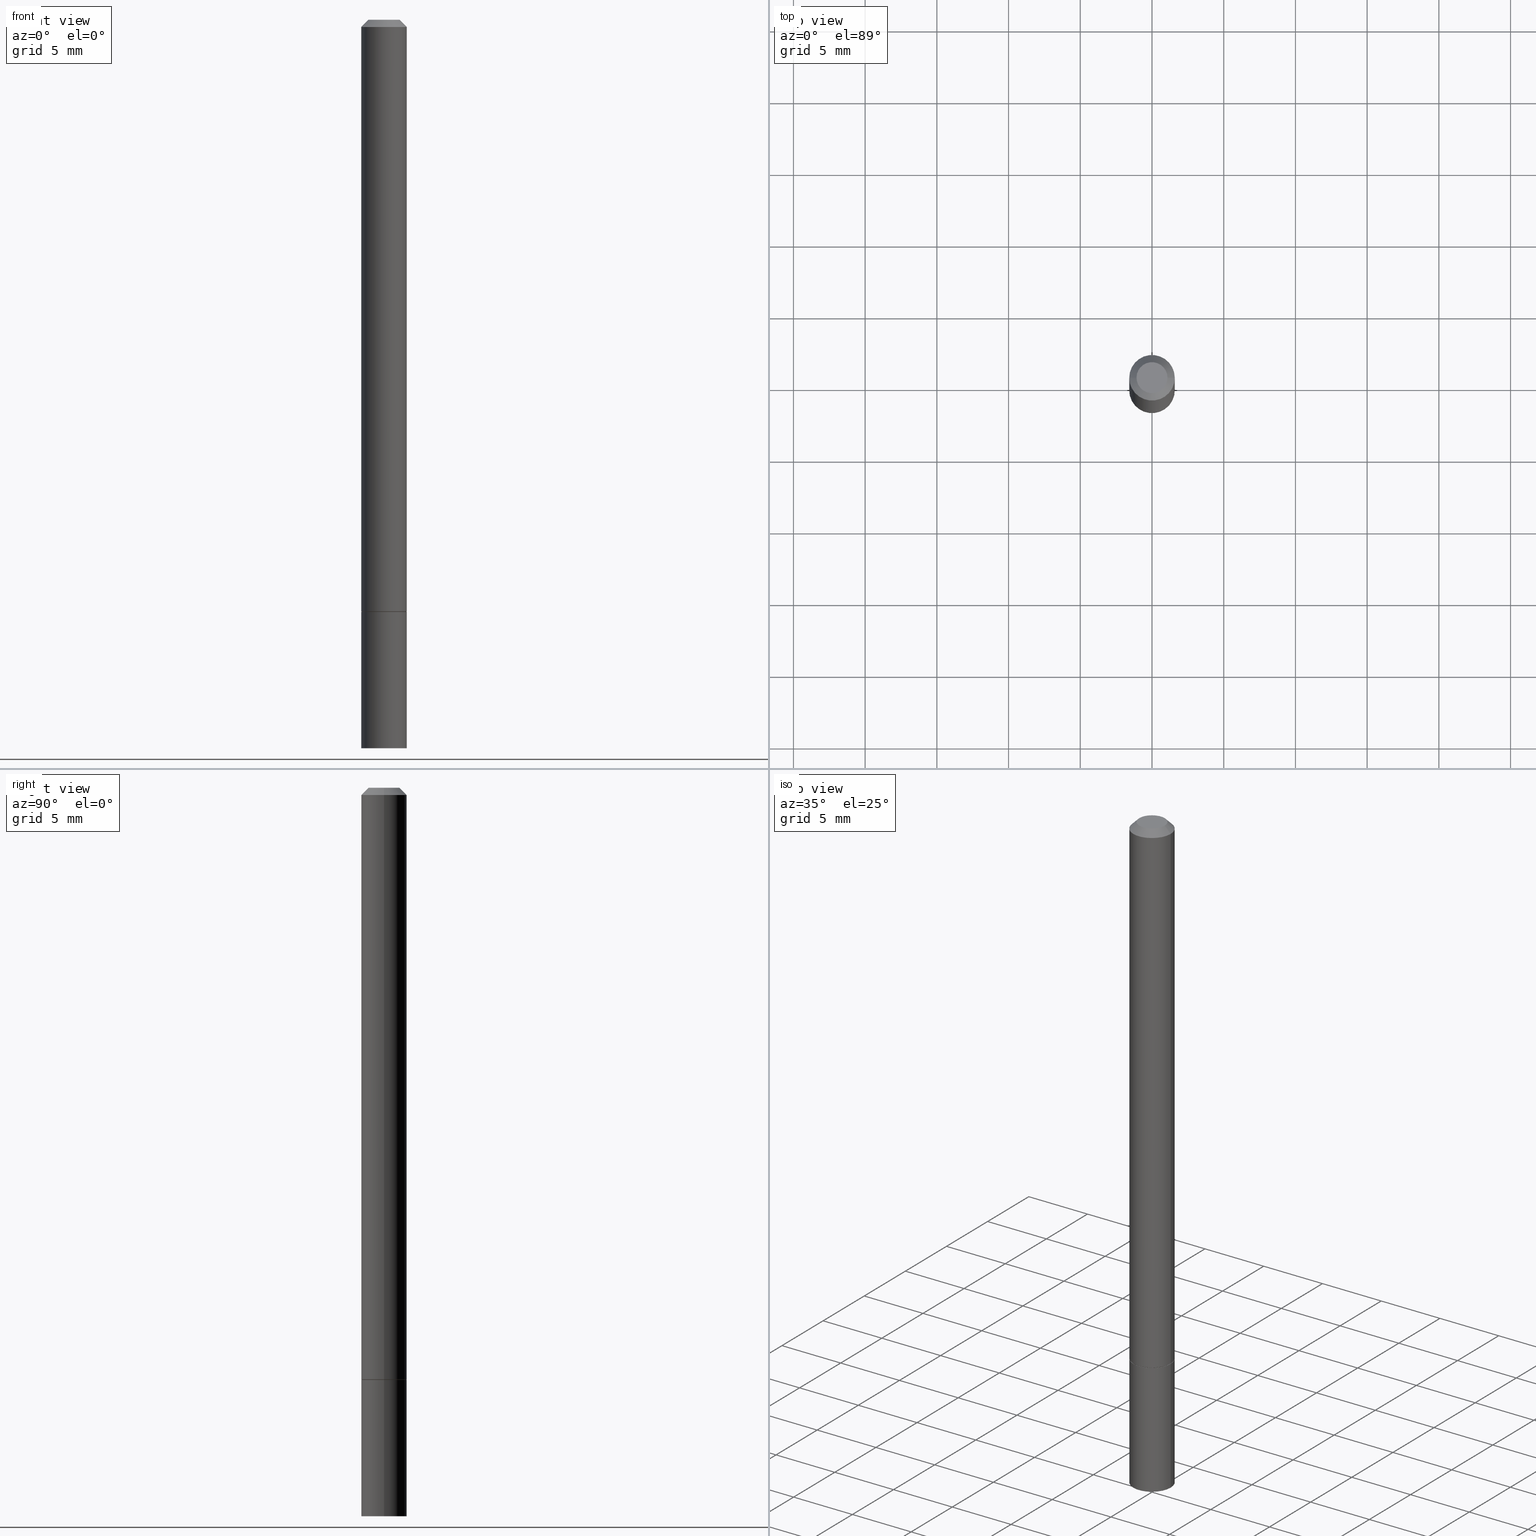
[diagram: canonical four-view strip — front | top / right | iso, engineering-drawing reading convention]
A machine part, canonical four-view strip (front | top / right | iso — engineering-drawing reading convention). The complete STEP part file that produces these views, byte-faithful:
ISO-10303-21;
HEADER;
FILE_DESCRIPTION (( 'STEP AP203' ),
    '1' );
FILE_NAME ('37395.STEP',
    '2024-02-27T21:24:56',
    ( '' ),
    ( '' ),
    'SwSTEP 2.0',
    'SolidWorks 2023',
    '' );
FILE_SCHEMA (( 'CONFIG_CONTROL_DESIGN' ));
ENDSEC;

DATA;
#1 = EDGE_CURVE ( 'NONE', #178, #48, #174, .T. ) ;
#2 = APPLICATION_PROTOCOL_DEFINITION ( 'international standard', 'config_control_design', 1994, #330 ) ;
#3 = PERSON_AND_ORGANIZATION_ROLE ( 'creator' ) ;
#4 = DIRECTION ( 'NONE',  ( 0.000000000000000000, 0.000000000000000000, 1.000000000000000000 ) ) ;
#5 = DIRECTION ( 'NONE',  ( 1.000000000000000000, -6.982962677686267499E-15, 4.879498284297456879E-29 ) ) ;
#6 = DIRECTION ( 'NONE',  ( 1.000000000000000000, -6.982962677686267499E-15, 4.876176775795935793E-29 ) ) ;
#7 = AXIS2_PLACEMENT_3D ( 'NONE', #313, #348, #267 ) ;
#8 = ORIENTED_EDGE ( 'NONE', *, *, #1, .F. ) ;
#9 = FACE_OUTER_BOUND ( 'NONE', #233, .T. ) ;
#10 = VERTEX_POINT ( 'NONE', #163 ) ;
#11 = SHAPE_DEFINITION_REPRESENTATION ( #354, #49 ) ;
#12 = FACE_OUTER_BOUND ( 'NONE', #89, .T. ) ;
#13 = EDGE_LOOP ( 'NONE', ( #165, #187, #210, #287 ) ) ;
#14 = CARTESIAN_POINT ( 'NONE',  ( -0.06250000000000001388, -5.884220716803138678E-15, -1.625000000000000000 ) ) ;
#15 = CIRCLE ( 'NONE', #309, 0.06250000000000001388 ) ;
#16 = VERTEX_POINT ( 'NONE', #274 ) ;
#17 = ADVANCED_FACE ( 'NONE', ( #21 ), #92, .T. ) ;
#18 = DIRECTION ( 'NONE',  ( 0.7071067811865232589, -2.468850131082003836E-15, 0.7071067811865715536 ) ) ;
#19 = PLANE ( 'NONE',  #251 ) ;
#20 = AXIS2_PLACEMENT_3D ( 'NONE', #211, #288, #155 ) ;
#21 = FACE_OUTER_BOUND ( 'NONE', #266, .T. ) ;
#22 = UNCERTAINTY_MEASURE_WITH_UNIT (LENGTH_MEASURE( 1.000000000000000082E-05 ), #112, 'distance_accuracy_value', 'NONE');
#23 = CARTESIAN_POINT ( 'NONE',  ( 0.06249999999999981265, -4.986107516375823445E-16, -0.02000000000000000736 ) ) ;
#24 = ADVANCED_FACE ( 'NONE', ( #161 ), #279, .T. ) ;
#25 = APPROVAL_STATUS ( 'not_yet_approved' ) ;
#26 = PERSON_AND_ORGANIZATION ( #84, #167 ) ;
#27 = EDGE_CURVE ( 'NONE', #48, #16, #195, .T. ) ;
#28 = PERSON_AND_ORGANIZATION_ROLE ( 'design_owner' ) ;
#29 = ORIENTED_EDGE ( 'NONE', *, *, #238, .F. ) ;
#30 = PERSON_AND_ORGANIZATION ( #84, #167 ) ;
#31 = CARTESIAN_POINT ( 'NONE',  ( -0.06249999999999991673, 4.440892098500620245E-16, -3.074334431409311910E-30 ) ) ;
#32 = ORIENTED_EDGE ( 'NONE', *, *, #164, .T. ) ;
#33 = ADVANCED_FACE ( 'NONE', ( #104 ), #166, .T. ) ;
#34 = CARTESIAN_POINT ( 'NONE',  ( 4.890937612370273194E-29, -6.982962677686291165E-15, -2.000000000000000000 ) ) ;
#35 = CONICAL_SURFACE ( 'NONE', #177, 0.06249999999999981265, 0.7853981633974467247 ) ;
#36 = APPROVAL ( #205, 'UNSPECIFIED' ) ;
#37 = DIRECTION ( 'NONE',  ( -2.445468806185136877E-29, 3.491481338843145188E-15, 1.000000000000000000 ) ) ;
#38 = ORIENTED_EDGE ( 'NONE', *, *, #50, .F. ) ;
#39 = DIRECTION ( 'NONE',  ( -1.000000000000000000, 6.982962677686265922E-15, -4.876176775795935793E-29 ) ) ;
#40 = ORIENTED_EDGE ( 'NONE', *, *, #238, .T. ) ;
#41 = DIRECTION ( 'NONE',  ( -2.445468806185136597E-29, 3.491481338843145583E-15, 1.000000000000000000 ) ) ;
#42 = AXIS2_PLACEMENT_3D ( 'NONE', #86, #318, #6 ) ;
#43 = PRODUCT_DEFINITION ( 'UNKNOWN', '', #136, #218 ) ;
#44 = CARTESIAN_POINT ( 'NONE',  ( 0.000000000000000000, 0.000000000000000000, 0.000000000000000000 ) ) ;
#45 = DIRECTION ( 'NONE',  ( -0.7071067811865232589, 7.493145998870265808E-15, 0.7071067811865715536 ) ) ;
#46 = DIRECTION ( 'NONE',  ( 1.000000000000000000, -6.982962677686260400E-15, 0.000000000000000000 ) ) ;
#47 = DIRECTION ( 'NONE',  ( -2.445468806185136597E-29, 3.491481338843145583E-15, 1.000000000000000000 ) ) ;
#48 = VERTEX_POINT ( 'NONE', #296 ) ;
#49 = ADVANCED_BREP_SHAPE_REPRESENTATION ( '37395', ( #317, #308, #160 ), #271 ) ;
#50 = EDGE_CURVE ( 'NONE', #16, #259, #73, .T. ) ;
#51 = CIRCLE ( 'NONE', #105, 0.04249999999999988509 ) ;
#52 = AXIS2_PLACEMENT_3D ( 'NONE', #241, #149, #186 ) ;
#53 = CALENDAR_DATE ( 2024, 27, 2 ) ;
#54 = FACE_OUTER_BOUND ( 'NONE', #185, .T. ) ;
#55 = APPROVAL ( #199, 'UNSPECIFIED' ) ;
#56 = APPROVAL_ROLE ( '' ) ;
#57 = ADVANCED_FACE ( 'NONE', ( #328 ), #162, .T. ) ;
#58 = DIRECTION ( 'NONE',  ( 1.000000000000000000, 0.000000000000000000, 0.000000000000000000 ) ) ;
#59 = CARTESIAN_POINT ( 'NONE',  ( 0.000000000000000000, 0.000000000000000000, 0.000000000000000000 ) ) ;
#60 = VERTEX_POINT ( 'NONE', #361 ) ;
#61 = COORDINATED_UNIVERSAL_TIME_OFFSET ( 5, 0, .BEHIND. ) ;
#62 = DIRECTION ( 'NONE',  ( 1.000000000000000000, -6.982962677686266711E-15, 4.876176775795935793E-29 ) ) ;
#63 = EDGE_LOOP ( 'NONE', ( #268, #147, #215, #38 ) ) ;
#64 = DIRECTION ( 'NONE',  ( 2.445468806185136597E-29, -3.491481338843145583E-15, -1.000000000000000000 ) ) ;
#65 = EDGE_LOOP ( 'NONE', ( #182, #150 ) ) ;
#66 = FACE_OUTER_BOUND ( 'NONE', #65, .T. ) ;
#67 = LOCAL_TIME ( 16, 24, 56.00000000000000000, #311 ) ;
#68 = ORIENTED_EDGE ( 'NONE', *, *, #362, .T. ) ;
#69 = CARTESIAN_POINT ( 'NONE',  ( 4.890937612370274910E-31, -6.982962677686295307E-17, -0.02000000000000000736 ) ) ;
#70 = EDGE_LOOP ( 'NONE', ( #237, #8 ) ) ;
#71 = ADVANCED_FACE ( 'NONE', ( #277 ), #19, .F. ) ;
#72 = DIRECTION ( 'NONE',  ( 1.000000000000000000, -6.982962677686266711E-15, 0.000000000000000000 ) ) ;
#73 = LINE ( 'NONE', #250, #219 ) ;
#74 = APPROVAL_PERSON_ORGANIZATION ( #26, #36, #142 ) ;
#75 = CARTESIAN_POINT ( 'NONE',  ( 3.973886810050846970E-29, -5.673657175620112213E-15, -1.625000000000000000 ) ) ;
#76 = EDGE_CURVE ( 'NONE', #341, #16, #140, .T. ) ;
#77 = DIRECTION ( 'NONE',  ( -2.445468806185136597E-29, 3.491481338843145583E-15, 1.000000000000000000 ) ) ;
#78 = CARTESIAN_POINT ( 'NONE',  ( 4.890937612370274910E-31, -6.982962677686295307E-17, -0.02000000000000000736 ) ) ;
#79 = AXIS2_PLACEMENT_3D ( 'NONE', #78, #130, #72 ) ;
#80 = EDGE_CURVE ( 'NONE', #316, #294, #51, .T. ) ;
#81 = APPROVAL_ROLE ( '' ) ;
#82 =( LENGTH_UNIT ( ) NAMED_UNIT ( * ) SI_UNIT ( $, .METRE. ) );
#83 = DIRECTION ( 'NONE',  ( 1.000000000000000000, -6.982962677686261189E-15, 0.000000000000000000 ) ) ;
#84 = PERSON ( 'UNSPECIFIED', 'UNSPECIFIED', 'UNSPECIFIED', ('UNSPECIFIED'), ('UNSPECIFIED'), ('UNSPECIFIED') ) ;
#85 = PERSON_AND_ORGANIZATION ( #84, #167 ) ;
#86 = CARTESIAN_POINT ( 'NONE',  ( 0.000000000000000000, 0.000000000000000000, 0.000000000000000000 ) ) ;
#87 = EDGE_CURVE ( 'NONE', #294, #95, #109, .T. ) ;
#88 = COORDINATED_UNIVERSAL_TIME_OFFSET ( 5, 0, .BEHIND. ) ;
#89 = EDGE_LOOP ( 'NONE', ( #345, #242, #119, #214 ) ) ;
#90 = AXIS2_PLACEMENT_3D ( 'NONE', #98, #213, #293 ) ;
#91 = PLANE ( 'NONE',  #203 ) ;
#92 = CONICAL_SURFACE ( 'NONE', #120, 0.06150000000000001299, 0.7853981633974141952 ) ;
#93 = ORIENTED_EDGE ( 'NONE', *, *, #141, .T. ) ;
#94 = DIRECTION ( 'NONE',  ( 2.438088387897960049E-29, -3.491481338843145188E-15, -1.000000000000000000 ) ) ;
#95 = VERTEX_POINT ( 'NONE', #301 ) ;
#96 = CARTESIAN_POINT ( 'NONE',  ( -0.06250000000000001388, -2.425908450678998508E-15, -1.623999999999999888 ) ) ;
#97 = VERTEX_POINT ( 'NONE', #331 ) ;
#98 = CARTESIAN_POINT ( 'NONE',  ( 3.973886810050846970E-29, -5.673657175620112213E-15, -1.625000000000000000 ) ) ;
#99 = LOCAL_TIME ( 16, 24, 56.00000000000000000, #88 ) ;
#100 = CARTESIAN_POINT ( 'NONE',  ( -0.06250000000000001388, 4.440892098500627148E-16, -3.074334431409317165E-30 ) ) ;
#101 = CARTESIAN_POINT ( 'NONE',  ( 3.971441341244661927E-29, -5.670165694281268417E-15, -1.623999999999999888 ) ) ;
#102 = PRODUCT ( '37395', '37395', '', ( #285 ) ) ;
#103 = ORIENTED_EDGE ( 'NONE', *, *, #27, .F. ) ;
#104 = FACE_OUTER_BOUND ( 'NONE', #63, .T. ) ;
#105 = AXIS2_PLACEMENT_3D ( 'NONE', #221, #47, #133 ) ;
#106 = AXIS2_PLACEMENT_3D ( 'NONE', #157, #269, #143 ) ;
#107 = CC_DESIGN_PERSON_AND_ORGANIZATION_ASSIGNMENT ( #234, #280, ( #136 ) ) ;
#108 = DIRECTION ( 'NONE',  ( 1.000000000000000000, -6.982962677686260400E-15, 0.000000000000000000 ) ) ;
#109 = LINE ( 'NONE', #273, #352 ) ;
#110 = VECTOR ( 'NONE', #332, 39.37007874015748143 ) ;
#111 = CARTESIAN_POINT ( 'NONE',  ( 0.06250000000000001388, -4.364351673553918173E-16, 3.047610484872460571E-30 ) ) ;
#112 =( CONVERSION_BASED_UNIT ( 'INCH', #342 ) LENGTH_UNIT ( ) NAMED_UNIT ( #229 ) );
#113 = DIRECTION ( 'NONE',  ( -2.445468806185136597E-29, 3.491481338843145583E-15, 1.000000000000000000 ) ) ;
#114 = CIRCLE ( 'NONE', #283, 0.06250000000000001388 ) ;
#115 = CALENDAR_DATE ( 2024, 27, 2 ) ;
#116 = SECURITY_CLASSIFICATION_LEVEL ( 'unclassified' ) ;
#117 = PERSON_AND_ORGANIZATION ( #84, #167 ) ;
#118 = DIRECTION ( 'NONE',  ( -1.000000000000000000, 6.982962677686266711E-15, 0.000000000000000000 ) ) ;
#119 = ORIENTED_EDGE ( 'NONE', *, *, #138, .T. ) ;
#120 = AXIS2_PLACEMENT_3D ( 'NONE', #353, #77, #46 ) ;
#121 = AXIS2_PLACEMENT_3D ( 'NONE', #258, #122, #5 ) ;
#122 = DIRECTION ( 'NONE',  ( -2.445468806185136597E-29, 3.491481338843145583E-15, 1.000000000000000000 ) ) ;
#123 = ORIENTED_EDGE ( 'NONE', *, *, #171, .F. ) ;
#124 = CALENDAR_DATE ( 2024, 27, 2 ) ;
#125 = CARTESIAN_POINT ( 'NONE',  ( 4.364351673554314576E-16, 0.06249999999999433786, -1.625000000000000222 ) ) ;
#126 = ORIENTED_EDGE ( 'NONE', *, *, #209, .F. ) ;
#127 = FACE_OUTER_BOUND ( 'NONE', #13, .T. ) ;
#128 = ORIENTED_EDGE ( 'NONE', *, *, #154, .T. ) ;
#129 = LOCAL_TIME ( 16, 24, 56.00000000000000000, #61 ) ;
#130 = DIRECTION ( 'NONE',  ( -2.445468806185136597E-29, 3.491481338843145583E-15, 1.000000000000000000 ) ) ;
#131 = AXIS2_PLACEMENT_3D ( 'NONE', #188, #41, #245 ) ;
#132 = DATE_AND_TIME ( #124, #67 ) ;
#133 = DIRECTION ( 'NONE',  ( 1.000000000000000000, -6.982962677686267499E-15, 4.879498284297456879E-29 ) ) ;
#134 = ORIENTED_EDGE ( 'NONE', *, *, #168, .F. ) ;
#135 = DIRECTION ( 'NONE',  ( 2.438088387897960049E-29, -3.491481338843145188E-15, -1.000000000000000000 ) ) ;
#136 = PRODUCT_DEFINITION_FORMATION_WITH_SPECIFIED_SOURCE ( 'ANY', '', #102, .NOT_KNOWN. ) ;
#137 = VERTEX_POINT ( 'NONE', #14 ) ;
#138 = EDGE_CURVE ( 'NONE', #259, #95, #196, .T. ) ;
#139 = AXIS2_PLACEMENT_3D ( 'NONE', #265, #236, #118 ) ;
#140 = CIRCLE ( 'NONE', #325, 0.06250000000000001388 ) ;
#141 = EDGE_CURVE ( 'NONE', #95, #259, #284, .T. ) ;
#142 = APPROVAL_ROLE ( '' ) ;
#143 = DIRECTION ( 'NONE',  ( 1.000000000000000000, -6.982962677686261189E-15, 0.000000000000000000 ) ) ;
#144 = APPROVAL_PERSON_ORGANIZATION ( #30, #55, #56 ) ;
#145 = DIRECTION ( 'NONE',  ( -2.445468806185136597E-29, 3.491481338843145583E-15, 1.000000000000000000 ) ) ;
#146 = EDGE_CURVE ( 'NONE', #97, #10, #365, .T. ) ;
#147 = ORIENTED_EDGE ( 'NONE', *, *, #349, .T. ) ;
#148 = DATE_AND_TIME ( #53, #173 ) ;
#149 = DIRECTION ( 'NONE',  ( -2.438088387897960049E-29, 3.491481338843145188E-15, 1.000000000000000000 ) ) ;
#150 = ORIENTED_EDGE ( 'NONE', *, *, #171, .T. ) ;
#151 = VECTOR ( 'NONE', #253, 39.37007874015748143 ) ;
#152 = CARTESIAN_POINT ( 'NONE',  ( 0.04249999999999988509, -3.950909582714358571E-16, -2.134256245049963743E-17 ) ) ;
#153 = EDGE_LOOP ( 'NONE', ( #291, #350 ) ) ;
#154 = EDGE_CURVE ( 'NONE', #60, #137, #192, .T. ) ;
#155 = DIRECTION ( 'NONE',  ( 1.000000000000000000, -6.982962677686261189E-15, 0.000000000000000000 ) ) ;
#156 = CC_DESIGN_DATE_AND_TIME_ASSIGNMENT ( #306, #260, ( #300 ) ) ;
#157 = CARTESIAN_POINT ( 'NONE',  ( 4.890937612370273194E-29, -6.982962677686291165E-15, -2.000000000000000000 ) ) ;
#158 = EDGE_LOOP ( 'NONE', ( #321, #32, #126, #103 ) ) ;
#159 = CLOSED_SHELL ( 'NONE', ( #24, #281, #275, #204 ) ) ;
#160 = AXIS2_PLACEMENT_3D ( 'NONE', #59, #4, #58 ) ;
#161 = FACE_OUTER_BOUND ( 'NONE', #347, .T. ) ;
#162 = CONICAL_SURFACE ( 'NONE', #366, 0.06150000000000001299, 0.7853981633974141952 ) ;
#163 = CARTESIAN_POINT ( 'NONE',  ( 0.06250000000000001388, -6.110092342975503093E-15, -1.625000000000000000 ) ) ;
#164 = EDGE_CURVE ( 'NONE', #178, #341, #255, .T. ) ;
#165 = ORIENTED_EDGE ( 'NONE', *, *, #349, .F. ) ;
#166 = CYLINDRICAL_SURFACE ( 'NONE', #202, 0.06249999999999991673 ) ;
#167 = ORGANIZATION ( 'UNSPECIFIED', 'UNSPECIFIED', '' ) ;
#168 = EDGE_CURVE ( 'NONE', #316, #259, #170, .T. ) ;
#169 = CARTESIAN_POINT ( 'NONE',  ( 2.967759138016655168E-16, 0.04249999999999988509, -1.590592381260843181E-16 ) ) ;
#170 = LINE ( 'NONE', #23, #151 ) ;
#171 = EDGE_CURVE ( 'NONE', #137, #10, #114, .T. ) ;
#172 = CLOSED_SHELL ( 'NONE', ( #57, #33, #216, #231, #327, #17, #333, #71 ) ) ;
#173 = LOCAL_TIME ( 16, 24, 56.00000000000000000, #256 ) ;
#174 = CIRCLE ( 'NONE', #263, 0.06150000000000001299 ) ;
#175 = DATE_AND_TIME ( #230, #99 ) ;
#176 = APPROVAL_DATE_TIME ( #226, #55 ) ;
#177 = AXIS2_PLACEMENT_3D ( 'NONE', #69, #64, #343 ) ;
#178 = VERTEX_POINT ( 'NONE', #197 ) ;
#179 = CYLINDRICAL_SURFACE ( 'NONE', #326, 0.06249999999999991673 ) ;
#180 = ORIENTED_EDGE ( 'NONE', *, *, #224, .F. ) ;
#181 = DIRECTION ( 'NONE',  ( -2.445468806185136597E-29, 3.491481338843145583E-15, 1.000000000000000000 ) ) ;
#182 = ORIENTED_EDGE ( 'NONE', *, *, #224, .T. ) ;
#183 = CC_DESIGN_APPROVAL ( #36, ( #136 ) ) ;
#184 = FACE_OUTER_BOUND ( 'NONE', #310, .T. ) ;
#185 = EDGE_LOOP ( 'NONE', ( #314, #40, #240, #123 ) ) ;
#186 = DIRECTION ( 'NONE',  ( 1.000000000000000000, -6.982962677686265922E-15, 4.876176775795935793E-29 ) ) ;
#187 = ORIENTED_EDGE ( 'NONE', *, *, #76, .T. ) ;
#188 = CARTESIAN_POINT ( 'NONE',  ( 4.890937612370274910E-31, -6.982962677686295307E-17, -0.02000000000000000736 ) ) ;
#189 = CIRCLE ( 'NONE', #90, 0.06150000000000001299 ) ;
#190 = DIRECTION ( 'NONE',  ( -2.445468806185136877E-29, 3.491481338843145188E-15, 1.000000000000000000 ) ) ;
#191 = VECTOR ( 'NONE', #45, 39.37007874015748854 ) ;
#192 = LINE ( 'NONE', #100, #110 ) ;
#193 = DIRECTION ( 'NONE',  ( -2.445468806185136597E-29, 3.491481338843145583E-15, 1.000000000000000000 ) ) ;
#194 = CARTESIAN_POINT ( 'NONE',  ( 3.973886810050846970E-29, -5.673657175620112213E-15, -1.625000000000000000 ) ) ;
#195 = LINE ( 'NONE', #357, #363 ) ;
#196 = CIRCLE ( 'NONE', #79, 0.06249999999999981265 ) ;
#197 = CARTESIAN_POINT ( 'NONE',  ( -0.06150000000000001299, -5.231374938779427414E-15, -1.625000000000000000 ) ) ;
#198 = COORDINATED_UNIVERSAL_TIME_OFFSET ( 5, 0, .BEHIND. ) ;
#199 = APPROVAL_STATUS ( 'not_yet_approved' ) ;
#200 = CALENDAR_DATE ( 2024, 27, 2 ) ;
#201 = ORIENTED_EDGE ( 'NONE', *, *, #27, .T. ) ;
#202 = AXIS2_PLACEMENT_3D ( 'NONE', #44, #220, #324 ) ;
#203 = AXIS2_PLACEMENT_3D ( 'NONE', #125, #94, #39 ) ;
#204 = ADVANCED_FACE ( 'NONE', ( #54 ), #338, .T. ) ;
#205 = APPROVAL_STATUS ( 'not_yet_approved' ) ;
#206 = CARTESIAN_POINT ( 'NONE',  ( -0.04249999999999988509, 3.316907271900964263E-16, -2.134256245050425658E-17 ) ) ;
#207 = ORIENTED_EDGE ( 'NONE', *, *, #1, .T. ) ;
#208 = PLANE ( 'NONE',  #7 ) ;
#209 = EDGE_CURVE ( 'NONE', #16, #341, #358, .T. ) ;
#210 = ORIENTED_EDGE ( 'NONE', *, *, #50, .T. ) ;
#211 = CARTESIAN_POINT ( 'NONE',  ( 3.971441341244661927E-29, -5.670165694281268417E-15, -1.623999999999999888 ) ) ;
#212 = ORIENTED_EDGE ( 'NONE', *, *, #146, .F. ) ;
#213 = DIRECTION ( 'NONE',  ( -2.445468806185136597E-29, 3.491481338843145583E-15, 1.000000000000000000 ) ) ;
#214 = ORIENTED_EDGE ( 'NONE', *, *, #87, .F. ) ;
#215 = ORIENTED_EDGE ( 'NONE', *, *, #138, .F. ) ;
#216 = ADVANCED_FACE ( 'NONE', ( #12 ), #35, .T. ) ;
#217 = DIRECTION ( 'NONE',  ( 1.000000000000000000, -6.982962677686267499E-15, 4.876176775795935793E-29 ) ) ;
#218 = DESIGN_CONTEXT ( 'detailed design', #330, 'design' ) ;
#219 = VECTOR ( 'NONE', #190, 39.37007874015748143 ) ;
#220 = DIRECTION ( 'NONE',  ( -2.445468806185136597E-29, 3.491481338843145583E-15, 1.000000000000000000 ) ) ;
#221 = CARTESIAN_POINT ( 'NONE',  ( 5.219257071676098903E-46, -7.451715851902235727E-32, -2.134256245050205639E-17 ) ) ;
#222 = DIRECTION ( 'NONE',  ( -0.7071067811865464625, 2.468850131082245228E-15, -0.7071067811865486830 ) ) ;
#223 = CC_DESIGN_SECURITY_CLASSIFICATION ( #300, ( #136 ) ) ;
#224 = EDGE_CURVE ( 'NONE', #10, #137, #264, .T. ) ;
#225 = PERSON_AND_ORGANIZATION ( #84, #167 ) ;
#226 = DATE_AND_TIME ( #115, #344 ) ;
#227 = CC_DESIGN_PERSON_AND_ORGANIZATION_ASSIGNMENT ( #117, #3, ( #136 ) ) ;
#228 = APPROVAL_PERSON_ORGANIZATION ( #225, #322, #81 ) ;
#229 = DIMENSIONAL_EXPONENTS ( 1.000000000000000000, 0.000000000000000000, 0.000000000000000000, 0.000000000000000000, 0.000000000000000000, 0.000000000000000000, 0.000000000000000000 ) ;
#230 = CALENDAR_DATE ( 2024, 27, 2 ) ;
#231 = ADVANCED_FACE ( 'NONE', ( #184 ), #247, .T. ) ;
#232 =( NAMED_UNIT ( * ) PLANE_ANGLE_UNIT ( ) SI_UNIT ( $, .RADIAN. ) );
#233 = EDGE_LOOP ( 'NONE', ( #270, #29 ) ) ;
#234 = PERSON_AND_ORGANIZATION ( #84, #167 ) ;
#235 = CARTESIAN_POINT ( 'NONE',  ( -0.06150000000000001299, -5.236673393127650605E-15, -1.625000000000000000 ) ) ;
#236 = DIRECTION ( 'NONE',  ( 2.445468806185136597E-29, -3.491481338843145583E-15, -1.000000000000000000 ) ) ;
#237 = ORIENTED_EDGE ( 'NONE', *, *, #356, .F. ) ;
#238 = EDGE_CURVE ( 'NONE', #60, #97, #15, .T. ) ;
#239 = DIRECTION ( 'NONE',  ( 1.000000000000000000, -6.982962677686261189E-15, 0.000000000000000000 ) ) ;
#240 = ORIENTED_EDGE ( 'NONE', *, *, #146, .T. ) ;
#241 = CARTESIAN_POINT ( 'NONE',  ( 3.973886810050846970E-29, -5.673657175620112213E-15, -1.625000000000000000 ) ) ;
#242 = ORIENTED_EDGE ( 'NONE', *, *, #168, .T. ) ;
#243 = FACE_OUTER_BOUND ( 'NONE', #70, .T. ) ;
#244 = DIRECTION ( 'NONE',  ( -2.445468806185136597E-29, 3.491481338843145583E-15, 1.000000000000000000 ) ) ;
#245 = DIRECTION ( 'NONE',  ( 1.000000000000000000, -6.982962677686266711E-15, 0.000000000000000000 ) ) ;
#246 = DIRECTION ( 'NONE',  ( -2.445468806185136597E-29, 3.491481338843145583E-15, 1.000000000000000000 ) ) ;
#247 = CONICAL_SURFACE ( 'NONE', #139, 0.06249999999999981265, 0.7853981633974467247 ) ;
#248 = DIRECTION ( 'NONE',  ( -1.000000000000000000, 6.982962677686265922E-15, -4.876176775795935793E-29 ) ) ;
#249 = CC_DESIGN_PERSON_AND_ORGANIZATION_ASSIGNMENT ( #85, #312, ( #300 ) ) ;
#250 = CARTESIAN_POINT ( 'NONE',  ( 0.06249999999999991673, -4.364351673553910778E-16, 3.047610484872455667E-30 ) ) ;
#251 = AXIS2_PLACEMENT_3D ( 'NONE', #169, #135, #248 ) ;
#252 = VECTOR ( 'NONE', #37, 39.37007874015748143 ) ;
#253 = DIRECTION ( 'NONE',  ( 0.7071067811865464625, -7.319954787623252890E-15, -0.7071067811865486830 ) ) ;
#254 = PERSON_AND_ORGANIZATION ( #84, #167 ) ;
#255 = LINE ( 'NONE', #235, #191 ) ;
#256 = COORDINATED_UNIVERSAL_TIME_OFFSET ( 5, 0, .BEHIND. ) ;
#257 = APPROVAL_DATE_TIME ( #148, #36 ) ;
#258 = CARTESIAN_POINT ( 'NONE',  ( 5.219257071676098903E-46, -7.451715851902235727E-32, -2.134256245050205639E-17 ) ) ;
#259 = VERTEX_POINT ( 'NONE', #346 ) ;
#260 = DATE_TIME_ROLE ( 'classification_date' ) ;
#261 = DIRECTION ( 'NONE',  ( 1.000000000000000000, -6.982962677686261189E-15, 0.000000000000000000 ) ) ;
#262 = ORIENTED_EDGE ( 'NONE', *, *, #164, .F. ) ;
#263 = AXIS2_PLACEMENT_3D ( 'NONE', #194, #244, #360 ) ;
#264 = CIRCLE ( 'NONE', #364, 0.06250000000000001388 ) ;
#265 = CARTESIAN_POINT ( 'NONE',  ( 4.890937612370274910E-31, -6.982962677686295307E-17, -0.02000000000000000736 ) ) ;
#266 = EDGE_LOOP ( 'NONE', ( #262, #207, #201, #295 ) ) ;
#267 = DIRECTION ( 'NONE',  ( -1.000000000000000000, 6.982962677686265922E-15, -4.876176775795935793E-29 ) ) ;
#268 = ORIENTED_EDGE ( 'NONE', *, *, #209, .T. ) ;
#269 = DIRECTION ( 'NONE',  ( -2.445468806185136597E-29, 3.491481338843145583E-15, 1.000000000000000000 ) ) ;
#270 = ORIENTED_EDGE ( 'NONE', *, *, #362, .F. ) ;
#271 =( GEOMETRIC_REPRESENTATION_CONTEXT ( 3 ) GLOBAL_UNCERTAINTY_ASSIGNED_CONTEXT ( ( #22 ) ) GLOBAL_UNIT_ASSIGNED_CONTEXT ( ( #112, #232, #340 ) ) REPRESENTATION_CONTEXT ( 'NONE', 'WORKASPACE' ) );
#272 = VECTOR ( 'NONE', #303, 39.37007874015748143 ) ;
#273 = CARTESIAN_POINT ( 'NONE',  ( -0.06249999999999981265, 3.666055405785273851E-16, -0.02000000000000000736 ) ) ;
#274 = CARTESIAN_POINT ( 'NONE',  ( 0.06250000000000001388, -6.106600861636660086E-15, -1.623999999999999888 ) ) ;
#275 = ADVANCED_FACE ( 'NONE', ( #66 ), #91, .F. ) ;
#276 = PRODUCT_RELATED_PRODUCT_CATEGORY ( 'detail', '', ( #102 ) ) ;
#277 = FACE_OUTER_BOUND ( 'NONE', #153, .T. ) ;
#278 = CC_DESIGN_APPROVAL ( #322, ( #300 ) ) ;
#279 = CYLINDRICAL_SURFACE ( 'NONE', #302, 0.06250000000000001388 ) ;
#280 = PERSON_AND_ORGANIZATION_ROLE ( 'design_supplier' ) ;
#281 = ADVANCED_FACE ( 'NONE', ( #9 ), #208, .T. ) ;
#282 = PERSON_AND_ORGANIZATION ( #84, #167 ) ;
#283 = AXIS2_PLACEMENT_3D ( 'NONE', #304, #113, #83 ) ;
#284 = CIRCLE ( 'NONE', #131, 0.06249999999999981265 ) ;
#285 = MECHANICAL_CONTEXT ( 'NONE', #297, 'mechanical' ) ;
#286 = LINE ( 'NONE', #31, #252 ) ;
#287 = ORIENTED_EDGE ( 'NONE', *, *, #141, .F. ) ;
#288 = DIRECTION ( 'NONE',  ( -2.445468806185136597E-29, 3.491481338843145583E-15, 1.000000000000000000 ) ) ;
#289 = CC_DESIGN_APPROVAL ( #55, ( #43 ) ) ;
#290 = DIRECTION ( 'NONE',  ( -2.445468806185136597E-29, 3.491481338843145583E-15, 1.000000000000000000 ) ) ;
#291 = ORIENTED_EDGE ( 'NONE', *, *, #305, .T. ) ;
#292 = APPROVAL_DATE_TIME ( #132, #322 ) ;
#293 = DIRECTION ( 'NONE',  ( 1.000000000000000000, -6.982962677686260400E-15, 0.000000000000000000 ) ) ;
#294 = VERTEX_POINT ( 'NONE', #206 ) ;
#295 = ORIENTED_EDGE ( 'NONE', *, *, #76, .F. ) ;
#296 = CARTESIAN_POINT ( 'NONE',  ( 0.06150000000000001299, -6.103109380297817079E-15, -1.625000000000000000 ) ) ;
#297 = APPLICATION_CONTEXT ( 'configuration controlled 3d designs of mechanical parts and assemblies' ) ;
#298 = CC_DESIGN_PERSON_AND_ORGANIZATION_ASSIGNMENT ( #254, #28, ( #102 ) ) ;
#299 = DIRECTION ( 'NONE',  ( -2.445468806185136597E-29, 3.491481338843145583E-15, 1.000000000000000000 ) ) ;
#300 = SECURITY_CLASSIFICATION ( '', '', #116 ) ;
#301 = CARTESIAN_POINT ( 'NONE',  ( -0.06249999999999981265, 3.666055405785273851E-16, -0.02000000000000000736 ) ) ;
#302 = AXIS2_PLACEMENT_3D ( 'NONE', #323, #246, #217 ) ;
#303 = DIRECTION ( 'NONE',  ( -2.445468806185136877E-29, 3.491481338843145188E-15, 1.000000000000000000 ) ) ;
#304 = CARTESIAN_POINT ( 'NONE',  ( 3.973886810050846970E-29, -5.673657175620112213E-15, -1.625000000000000000 ) ) ;
#305 = EDGE_CURVE ( 'NONE', #294, #316, #334, .T. ) ;
#306 = DATE_AND_TIME ( #200, #129 ) ;
#307 = CC_DESIGN_DATE_AND_TIME_ASSIGNMENT ( #175, #339, ( #43 ) ) ;
#308 = MANIFOLD_SOLID_BREP ( 'Body-Move/Copy2[2]', #172 ) ;
#309 = AXIS2_PLACEMENT_3D ( 'NONE', #34, #145, #261 ) ;
#310 = EDGE_LOOP ( 'NONE', ( #134, #319, #329, #93 ) ) ;
#311 = COORDINATED_UNIVERSAL_TIME_OFFSET ( 5, 0, .BEHIND. ) ;
#312 = PERSON_AND_ORGANIZATION_ROLE ( 'classification_officer' ) ;
#313 = CARTESIAN_POINT ( 'NONE',  ( 4.364351673554406281E-16, 0.06249999999999303335, -2.000000000000000444 ) ) ;
#314 = ORIENTED_EDGE ( 'NONE', *, *, #154, .F. ) ;
#315 = CARTESIAN_POINT ( 'NONE',  ( 0.000000000000000000, 0.000000000000000000, 0.000000000000000000 ) ) ;
#316 = VERTEX_POINT ( 'NONE', #152 ) ;
#317 = MANIFOLD_SOLID_BREP ( 'Body-Move/Copy2[1]', #159 ) ;
#318 = DIRECTION ( 'NONE',  ( -2.445468806185136597E-29, 3.491481338843145583E-15, 1.000000000000000000 ) ) ;
#319 = ORIENTED_EDGE ( 'NONE', *, *, #305, .F. ) ;
#320 = PLANE ( 'NONE',  #52 ) ;
#321 = ORIENTED_EDGE ( 'NONE', *, *, #356, .T. ) ;
#322 = APPROVAL ( #25, 'UNSPECIFIED' ) ;
#323 = CARTESIAN_POINT ( 'NONE',  ( 0.000000000000000000, 0.000000000000000000, 0.000000000000000000 ) ) ;
#324 = DIRECTION ( 'NONE',  ( 1.000000000000000000, -6.982962677686266711E-15, 4.876176775795935793E-29 ) ) ;
#325 = AXIS2_PLACEMENT_3D ( 'NONE', #101, #299, #355 ) ;
#326 = AXIS2_PLACEMENT_3D ( 'NONE', #315, #290, #62 ) ;
#327 = ADVANCED_FACE ( 'NONE', ( #127 ), #179, .T. ) ;
#328 = FACE_OUTER_BOUND ( 'NONE', #158, .T. ) ;
#329 = ORIENTED_EDGE ( 'NONE', *, *, #87, .T. ) ;
#330 = APPLICATION_CONTEXT ( 'configuration controlled 3d designs of mechanical parts and assemblies' ) ;
#331 = CARTESIAN_POINT ( 'NONE',  ( 0.06250000000000001388, -7.419397845041682046E-15, -2.000000000000000000 ) ) ;
#332 = DIRECTION ( 'NONE',  ( -2.445468806185136877E-29, 3.491481338843145188E-15, 1.000000000000000000 ) ) ;
#333 = ADVANCED_FACE ( 'NONE', ( #243 ), #320, .F. ) ;
#334 = CIRCLE ( 'NONE', #121, 0.04249999999999988509 ) ;
#335 = APPLICATION_PROTOCOL_DEFINITION ( 'international standard', 'config_control_design', 1994, #297 ) ;
#336 = PERSON_AND_ORGANIZATION_ROLE ( 'creator' ) ;
#337 = CIRCLE ( 'NONE', #106, 0.06250000000000001388 ) ;
#338 = CYLINDRICAL_SURFACE ( 'NONE', #42, 0.06250000000000001388 ) ;
#339 = DATE_TIME_ROLE ( 'creation_date' ) ;
#340 =( NAMED_UNIT ( * ) SI_UNIT ( $, .STERADIAN. ) SOLID_ANGLE_UNIT ( ) );
#341 = VERTEX_POINT ( 'NONE', #96 ) ;
#342 = LENGTH_MEASURE_WITH_UNIT ( LENGTH_MEASURE( 0.02539999999999999897 ), #82 );
#343 = DIRECTION ( 'NONE',  ( -1.000000000000000000, 6.982962677686266711E-15, 0.000000000000000000 ) ) ;
#344 = LOCAL_TIME ( 16, 24, 56.00000000000000000, #198 ) ;
#345 = ORIENTED_EDGE ( 'NONE', *, *, #80, .F. ) ;
#346 = CARTESIAN_POINT ( 'NONE',  ( 0.06249999999999981265, -4.986107516375823445E-16, -0.02000000000000000736 ) ) ;
#347 = EDGE_LOOP ( 'NONE', ( #68, #128, #180, #212 ) ) ;
#348 = DIRECTION ( 'NONE',  ( 2.438088387897960049E-29, -3.491481338843145188E-15, -1.000000000000000000 ) ) ;
#349 = EDGE_CURVE ( 'NONE', #341, #95, #286, .T. ) ;
#350 = ORIENTED_EDGE ( 'NONE', *, *, #80, .T. ) ;
#351 = CARTESIAN_POINT ( 'NONE',  ( 3.973886810050846970E-29, -5.673657175620112213E-15, -1.625000000000000000 ) ) ;
#352 = VECTOR ( 'NONE', #222, 39.37007874015748143 ) ;
#353 = CARTESIAN_POINT ( 'NONE',  ( 3.973886810050846970E-29, -5.673657175620112213E-15, -1.625000000000000000 ) ) ;
#354 = PRODUCT_DEFINITION_SHAPE ( 'NONE', 'NONE',  #43 ) ;
#355 = DIRECTION ( 'NONE',  ( 1.000000000000000000, -6.982962677686261189E-15, 0.000000000000000000 ) ) ;
#356 = EDGE_CURVE ( 'NONE', #48, #178, #189, .T. ) ;
#357 = CARTESIAN_POINT ( 'NONE',  ( 0.06150000000000001299, -6.103109380297817079E-15, -1.625000000000000000 ) ) ;
#358 = CIRCLE ( 'NONE', #20, 0.06250000000000001388 ) ;
#359 = CC_DESIGN_PERSON_AND_ORGANIZATION_ASSIGNMENT ( #282, #336, ( #43 ) ) ;
#360 = DIRECTION ( 'NONE',  ( 1.000000000000000000, -6.982962677686260400E-15, 0.000000000000000000 ) ) ;
#361 = CARTESIAN_POINT ( 'NONE',  ( -0.06250000000000001388, -5.884220716803138678E-15, -2.000000000000000000 ) ) ;
#362 = EDGE_CURVE ( 'NONE', #97, #60, #337, .T. ) ;
#363 = VECTOR ( 'NONE', #18, 39.37007874015748854 ) ;
#364 = AXIS2_PLACEMENT_3D ( 'NONE', #351, #181, #239 ) ;
#365 = LINE ( 'NONE', #111, #272 ) ;
#366 = AXIS2_PLACEMENT_3D ( 'NONE', #75, #193, #108 ) ;
ENDSEC;
END-ISO-10303-21;
